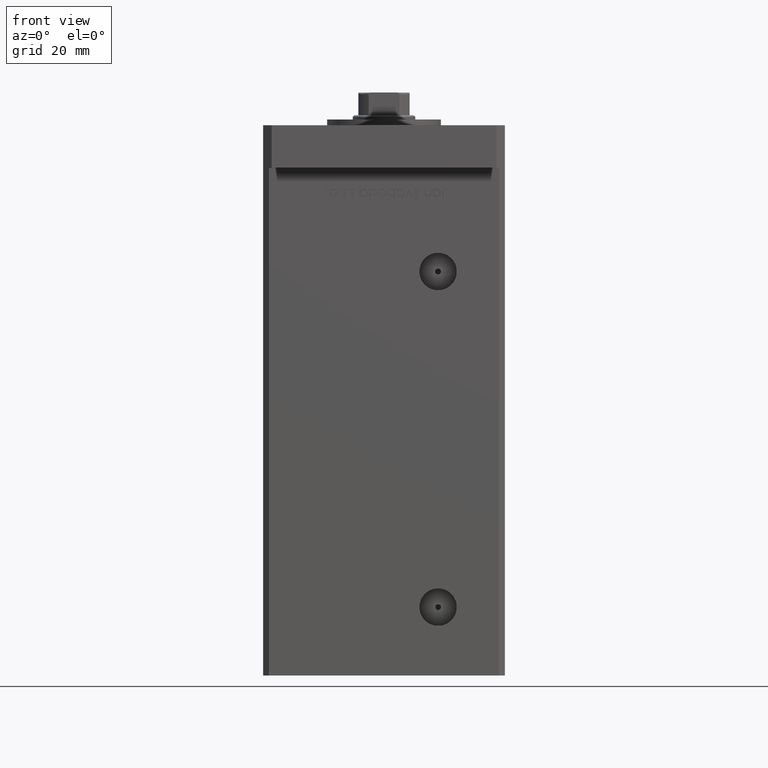
[diagram: clean part render]
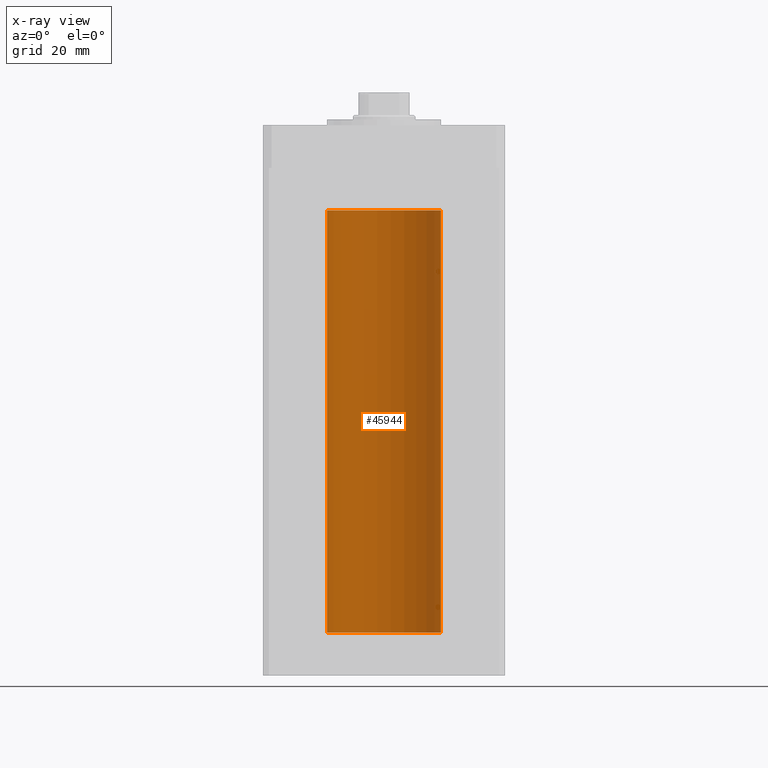
[diagram: x-ray — body ghosted, one internal face saturated and labeled with its STEP entity id]
A machine part, front view, then the same camera in x-ray: the body is ghosted and one INTERNAL B-rep face — a face not visible from any outside direction — is saturated and labeled: STEP entity #45944.
In plain terms, the highlighted cylindrical surface (partial cylindrical patch) has radius 20 mm, axis along (-0, -0, -1).
Its self-contained STEP definition (entity closure, byte-faithful):
#1635 = CIRCLE ( 'NONE', #5108, 20.00000000000000000 ) ;
#4121 = AXIS2_PLACEMENT_3D ( 'NONE', #35463, #52550, #27869 ) ;
#5108 = AXIS2_PLACEMENT_3D ( 'NONE', #34199, #9000, #26087 ) ;
#6654 = AXIS2_PLACEMENT_3D ( 'NONE', #49778, #12887, #29950 ) ;
#6799 = VERTEX_POINT ( 'NONE', #12429 ) ;
#6839 = EDGE_CURVE ( 'NONE', #6799, #41137, #24643, .T. ) ;
#7313 = CARTESIAN_POINT ( 'NONE',  ( 20.00000000000000000, 2.449293598294706513E-15, 148.5000000000000000 ) ) ;
#7624 = CIRCLE ( 'NONE', #4121, 20.00000000000000000 ) ;
#9000 = DIRECTION ( 'NONE',  ( -0.000000000000000000, 0.000000000000000000, 1.000000000000000000 ) ) ;
#9055 = EDGE_CURVE ( 'NONE', #37389, #26893, #19091, .T. ) ;
#11206 = EDGE_CURVE ( 'NONE', #41137, #26893, #7624, .T. ) ;
#12429 = CARTESIAN_POINT ( 'NONE',  ( 20.00000000000000000, 2.449293598294706513E-15, 148.5000000000000000 ) ) ;
#12887 = DIRECTION ( 'NONE',  ( -0.000000000000000000, -0.000000000000000000, -1.000000000000000000 ) ) ;
#13679 = FACE_OUTER_BOUND ( 'NONE', #26495, .T. ) ;
#15715 = DIRECTION ( 'NONE',  ( -0.000000000000000000, -0.000000000000000000, -1.000000000000000000 ) ) ;
#18677 = EDGE_CURVE ( 'NONE', #6799, #37389, #1635, .T. ) ;
#19091 = LINE ( 'NONE', #35635, #34371 ) ;
#20508 = CARTESIAN_POINT ( 'NONE',  ( -20.00000000000000000, 0.000000000000000000, 0.000000000000000000 ) ) ;
#22400 = ORIENTED_EDGE ( 'NONE', *, *, #9055, .T. ) ;
#24643 = LINE ( 'NONE', #7313, #52548 ) ;
#26087 = DIRECTION ( 'NONE',  ( 1.000000000000000000, 0.000000000000000000, 0.000000000000000000 ) ) ;
#26495 = EDGE_LOOP ( 'NONE', ( #38006, #39099, #22400, #41280 ) ) ;
#26893 = VERTEX_POINT ( 'NONE', #20508 ) ;
#27869 = DIRECTION ( 'NONE',  ( 1.000000000000000000, 0.000000000000000000, 0.000000000000000000 ) ) ;
#29950 = DIRECTION ( 'NONE',  ( -1.000000000000000000, 0.000000000000000000, 0.000000000000000000 ) ) ;
#30218 = CYLINDRICAL_SURFACE ( 'NONE', #6654, 20.00000000000000000 ) ;
#32086 = DIRECTION ( 'NONE',  ( -0.000000000000000000, -0.000000000000000000, -1.000000000000000000 ) ) ;
#32896 = CARTESIAN_POINT ( 'NONE',  ( 20.00000000000000000, 2.449293598294706513E-15, 0.000000000000000000 ) ) ;
#34199 = CARTESIAN_POINT ( 'NONE',  ( 0.000000000000000000, 0.000000000000000000, 148.5000000000000000 ) ) ;
#34371 = VECTOR ( 'NONE', #32086, 1000.000000000000000 ) ;
#35463 = CARTESIAN_POINT ( 'NONE',  ( 0.000000000000000000, 0.000000000000000000, 0.000000000000000000 ) ) ;
#35635 = CARTESIAN_POINT ( 'NONE',  ( -20.00000000000000000, 0.000000000000000000, 148.5000000000000000 ) ) ;
#37389 = VERTEX_POINT ( 'NONE', #50229 ) ;
#38006 = ORIENTED_EDGE ( 'NONE', *, *, #6839, .F. ) ;
#39099 = ORIENTED_EDGE ( 'NONE', *, *, #18677, .T. ) ;
#41137 = VERTEX_POINT ( 'NONE', #32896 ) ;
#41280 = ORIENTED_EDGE ( 'NONE', *, *, #11206, .F. ) ;
#45944 = ADVANCED_FACE ( 'NONE', ( #13679 ), #30218, .F. ) ;
#49778 = CARTESIAN_POINT ( 'NONE',  ( 0.000000000000000000, 0.000000000000000000, 148.5000000000000000 ) ) ;
#50229 = CARTESIAN_POINT ( 'NONE',  ( -20.00000000000000000, 0.000000000000000000, 148.5000000000000000 ) ) ;
#52548 = VECTOR ( 'NONE', #15715, 1000.000000000000000 ) ;
#52550 = DIRECTION ( 'NONE',  ( -0.000000000000000000, 0.000000000000000000, 1.000000000000000000 ) ) ;